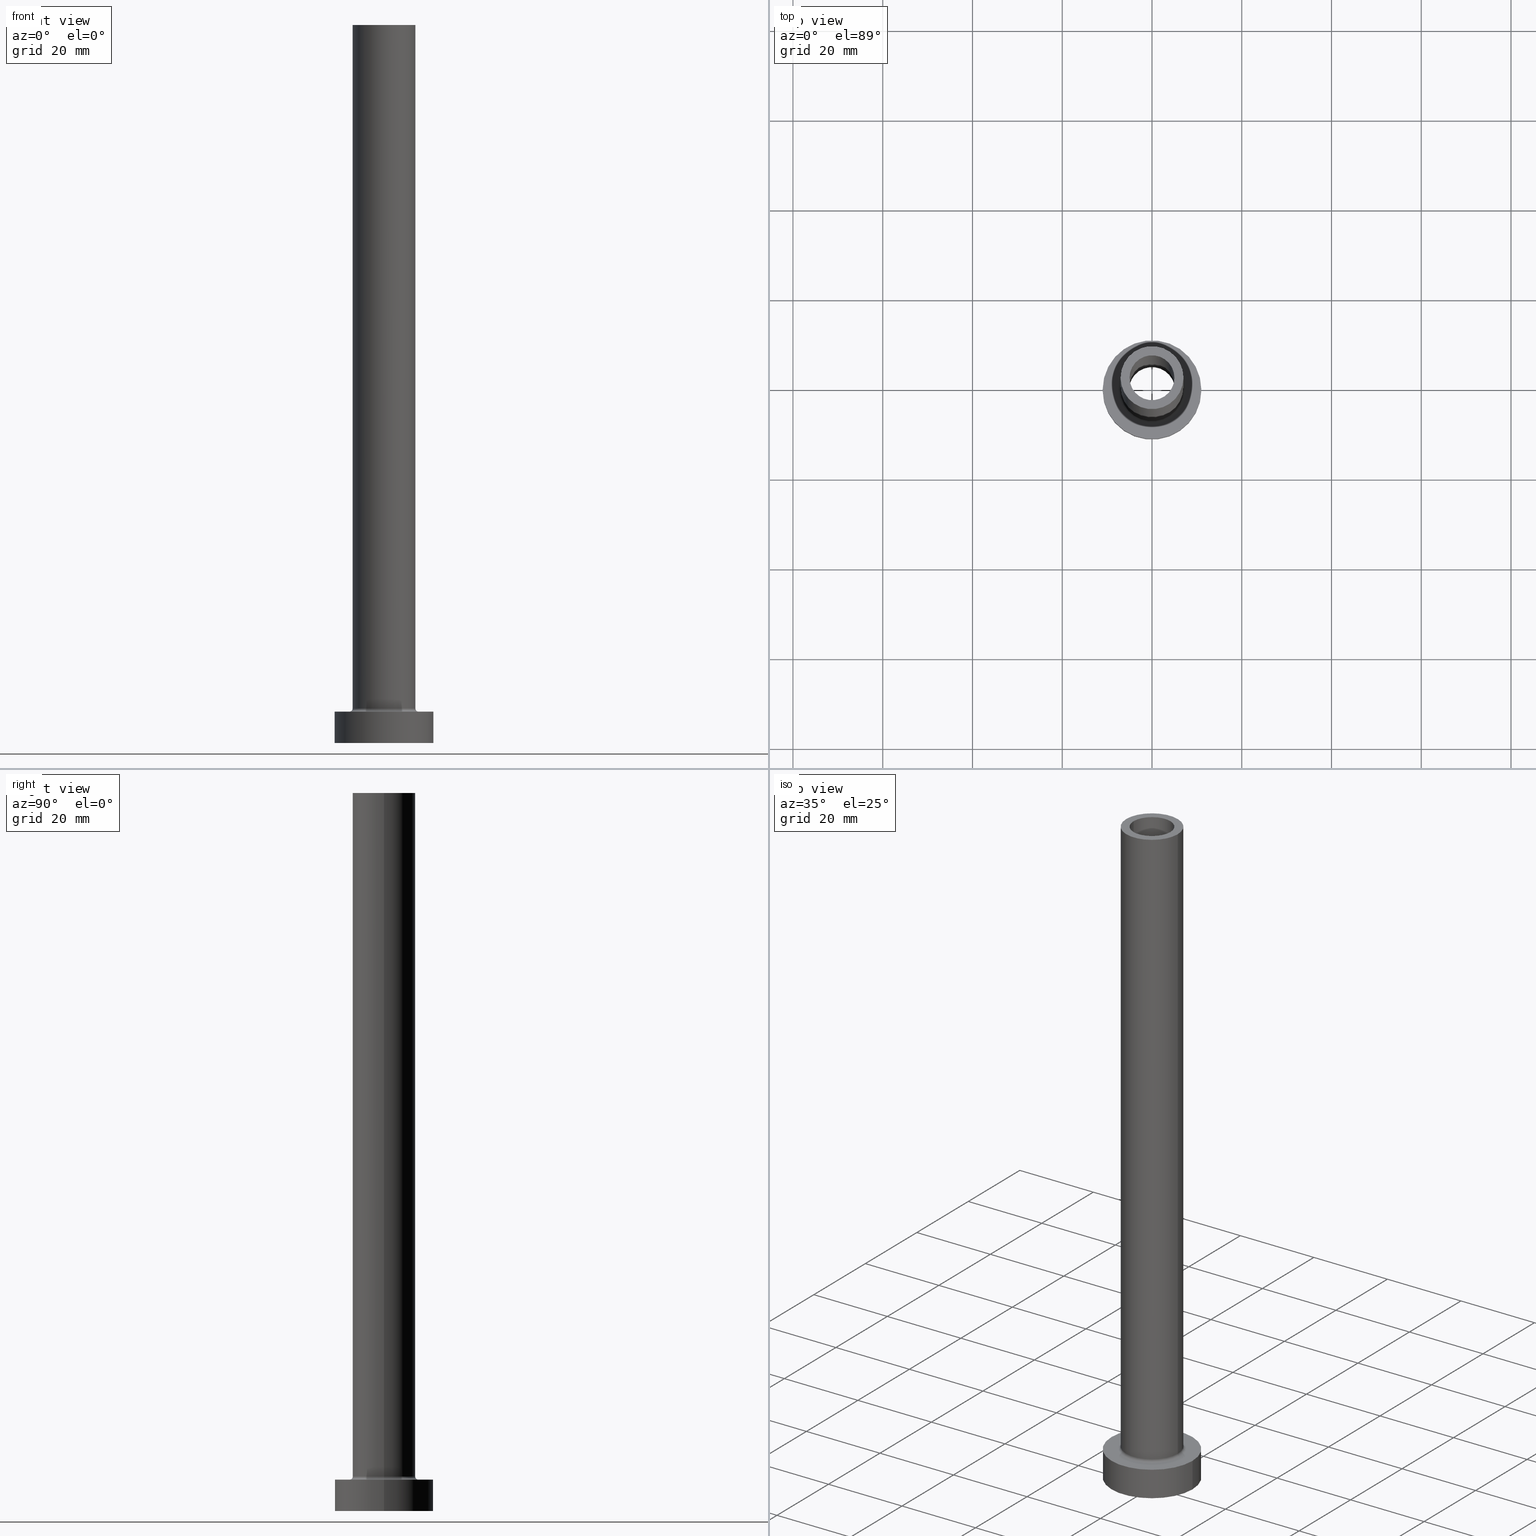
[diagram: canonical four-view strip — front | top / right | iso, engineering-drawing reading convention]
A machine part, canonical four-view strip (front | top / right | iso — engineering-drawing reading convention). The complete STEP part file that produces these views, byte-faithful:
ISO-10303-21;
HEADER;
FILE_DESCRIPTION (( 'STEP AP203' ),
    '1' );
FILE_NAME ('f8a9.STEP',
    '2023-02-13T07:44:09',
    ( '' ),
    ( '' ),
    'SwSTEP 2.0',
    'SolidWorks 2019',
    '' );
FILE_SCHEMA (( 'CONFIG_CONTROL_DESIGN' ));
ENDSEC;

DATA;
#1 = DIRECTION ( 'NONE',  ( 0.000000000000000000, 0.000000000000000000, 1.000000000000000000 ) ) ;
#2 = DIRECTION ( 'NONE',  ( 0.000000000000000000, 0.000000000000000000, -1.000000000000000000 ) ) ;
#3 = CARTESIAN_POINT ( 'NONE',  ( 0.000000000000000000, 0.000000000000000000, 115.0000000000000000 ) ) ;
#4 = EDGE_CURVE ( 'NONE', #73, #159, #318, .T. ) ;
#5 = PERSON_AND_ORGANIZATION_ROLE ( 'design_owner' ) ;
#6 = CARTESIAN_POINT ( 'NONE',  ( 0.000000000000000000, 0.000000000000000000, 160.0000000000000000 ) ) ;
#7 = FACE_OUTER_BOUND ( 'NONE', #450, .T. ) ;
#8 = ADVANCED_FACE ( 'NONE', ( #278 ), #282, .F. ) ;
#9 = FACE_OUTER_BOUND ( 'NONE', #59, .T. ) ;
#10 = COORDINATED_UNIVERSAL_TIME_OFFSET ( 1, 0, .AHEAD. ) ;
#11 = APPROVAL_PERSON_ORGANIZATION ( #179, #233, #110 ) ;
#12 = DATE_AND_TIME ( #43, #416 ) ;
#13 = DIRECTION ( 'NONE',  ( 0.000000000000000000, 0.000000000000000000, 1.000000000000000000 ) ) ;
#14 = APPROVAL_ROLE ( '' ) ;
#15 = CARTESIAN_POINT ( 'NONE',  ( 0.000000000000000000, 0.000000000000000000, 7.700000000000012612 ) ) ;
#16 = CARTESIAN_POINT ( 'NONE',  ( 0.000000000000000000, 0.000000000000000000, 160.0000000000000000 ) ) ;
#17 = CARTESIAN_POINT ( 'NONE',  ( -7.700000000000001066, 9.429780353434621002E-16, 7.000000000000006217 ) ) ;
#18 = ORIENTED_EDGE ( 'NONE', *, *, #431, .T. ) ;
#19 = CC_DESIGN_DATE_AND_TIME_ASSIGNMENT ( #271, #68, ( #268 ) ) ;
#20 = CARTESIAN_POINT ( 'NONE',  ( 7.700000000000001066, 0.000000000000000000, 7.700000000000012612 ) ) ;
#21 = CC_DESIGN_APPROVAL ( #102, ( #268 ) ) ;
#22 = DIRECTION ( 'NONE',  ( 1.000000000000000000, 0.000000000000000000, 0.000000000000000000 ) ) ;
#23 = EDGE_CURVE ( 'NONE', #168, #436, #105, .T. ) ;
#24 = AXIS2_PLACEMENT_3D ( 'NONE', #67, #212, #301 ) ;
#25 = AXIS2_PLACEMENT_3D ( 'NONE', #270, #225, #154 ) ;
#26 = ORIENTED_EDGE ( 'NONE', *, *, #446, .T. ) ;
#27 = LINE ( 'NONE', #294, #345 ) ;
#28 = ORIENTED_EDGE ( 'NONE', *, *, #328, .F. ) ;
#29 = EDGE_CURVE ( 'NONE', #436, #229, #381, .T. ) ;
#30 = ADVANCED_FACE ( 'NONE', ( #9 ), #111, .T. ) ;
#31 = LINE ( 'NONE', #399, #66 ) ;
#32 = CIRCLE ( 'NONE', #366, 7.700000000000001066 ) ;
#33 = CC_DESIGN_PERSON_AND_ORGANIZATION_ASSIGNMENT ( #261, #364, ( #217 ) ) ;
#34 = CARTESIAN_POINT ( 'NONE',  ( 0.000000000000000000, 0.000000000000000000, 160.0000000000000000 ) ) ;
#35 = VERTEX_POINT ( 'NONE', #329 ) ;
#36 = DATE_AND_TIME ( #149, #106 ) ;
#37 = CARTESIAN_POINT ( 'NONE',  ( 0.000000000000000000, 0.000000000000000000, 7.700000000000012612 ) ) ;
#38 = EDGE_LOOP ( 'NONE', ( #204, #334 ) ) ;
#39 = CC_DESIGN_PERSON_AND_ORGANIZATION_ASSIGNMENT ( #185, #338, ( #197 ) ) ;
#40 = CARTESIAN_POINT ( 'NONE',  ( 11.00000000000000000, 1.347111479062088405E-15, 7.000000000000000000 ) ) ;
#41 = EDGE_LOOP ( 'NONE', ( #393, #398 ) ) ;
#42 = APPROVAL_DATE_TIME ( #12, #151 ) ;
#43 = CALENDAR_DATE ( 2023, 13, 2 ) ;
#44 = EDGE_CURVE ( 'NONE', #386, #441, #440, .T. ) ;
#45 = ORIENTED_EDGE ( 'NONE', *, *, #255, .T. ) ;
#46 = EDGE_LOOP ( 'NONE', ( #410, #387, #454, #432 ) ) ;
#47 = DIRECTION ( 'NONE',  ( 0.000000000000000000, 0.000000000000000000, 1.000000000000000000 ) ) ;
#48 = EDGE_LOOP ( 'NONE', ( #289, #226 ) ) ;
#49 = DIRECTION ( 'NONE',  ( 0.000000000000000000, 0.000000000000000000, 1.000000000000000000 ) ) ;
#50 = DIRECTION ( 'NONE',  ( 0.000000000000000000, 0.000000000000000000, 1.000000000000000000 ) ) ;
#51 = CARTESIAN_POINT ( 'NONE',  ( -7.000000000000000888, 0.000000000000000000, 160.0000000000000000 ) ) ;
#52 = FACE_BOUND ( 'NONE', #132, .T. ) ;
#53 = TOROIDAL_SURFACE ( 'NONE', #196, 7.700000000000001066, 0.6999999999999999556 ) ;
#54 =( GEOMETRIC_REPRESENTATION_CONTEXT ( 3 ) GLOBAL_UNCERTAINTY_ASSIGNED_CONTEXT ( ( #250 ) ) GLOBAL_UNIT_ASSIGNED_CONTEXT ( ( #442, #227, #309 ) ) REPRESENTATION_CONTEXT ( 'NONE', 'WORKASPACE' ) );
#55 = ADVANCED_FACE ( 'NONE', ( #424 ), #280, .F. ) ;
#56 = CARTESIAN_POINT ( 'NONE',  ( 7.700000000000001066, 0.000000000000000000, 7.000000000000006217 ) ) ;
#57 = ORIENTED_EDGE ( 'NONE', *, *, #44, .T. ) ;
#58 = ORIENTED_EDGE ( 'NONE', *, *, #427, .T. ) ;
#59 = EDGE_LOOP ( 'NONE', ( #302, #448, #287, #26 ) ) ;
#60 = ORIENTED_EDGE ( 'NONE', *, *, #255, .F. ) ;
#61 = AXIS2_PLACEMENT_3D ( 'NONE', #244, #314, #451 ) ;
#62 = AXIS2_PLACEMENT_3D ( 'NONE', #230, #195, #81 ) ;
#63 = EDGE_LOOP ( 'NONE', ( #265, #324, #216, #113 ) ) ;
#64 = DESIGN_CONTEXT ( 'detailed design', #397, 'design' ) ;
#65 = CARTESIAN_POINT ( 'NONE',  ( 7.000000000000000888, 8.572527594031474176E-16, 160.0000000000000000 ) ) ;
#66 = VECTOR ( 'NONE', #175, 1000.000000000000000 ) ;
#67 = CARTESIAN_POINT ( 'NONE',  ( 0.000000000000000000, 0.000000000000000000, 7.000000000000000000 ) ) ;
#68 = DATE_TIME_ROLE ( 'creation_date' ) ;
#69 = CARTESIAN_POINT ( 'NONE',  ( 0.000000000000000000, 0.000000000000000000, 7.000000000000000000 ) ) ;
#70 = DIRECTION ( 'NONE',  ( 0.000000000000000000, 0.000000000000000000, -1.000000000000000000 ) ) ;
#71 = AXIS2_PLACEMENT_3D ( 'NONE', #373, #417, #418 ) ;
#72 = AXIS2_PLACEMENT_3D ( 'NONE', #16, #123, #351 ) ;
#73 = VERTEX_POINT ( 'NONE', #247 ) ;
#74 = DIRECTION ( 'NONE',  ( 1.000000000000000000, 0.000000000000000000, 0.000000000000000000 ) ) ;
#75 = DIRECTION ( 'NONE',  ( -1.000000000000000000, 1.224646799147351975E-16, 0.000000000000000000 ) ) ;
#76 = ORIENTED_EDGE ( 'NONE', *, *, #89, .F. ) ;
#77 = PERSON_AND_ORGANIZATION_ROLE ( 'creator' ) ;
#78 = CARTESIAN_POINT ( 'NONE',  ( -11.00000000000000000, 0.000000000000000000, 7.000000000000000000 ) ) ;
#79 = PRODUCT_DEFINITION_SHAPE ( 'NONE', 'NONE',  #268 ) ;
#80 = PERSON_AND_ORGANIZATION ( #191, #435 ) ;
#81 = DIRECTION ( 'NONE',  ( 1.000000000000000000, 0.000000000000000000, 0.000000000000000000 ) ) ;
#82 = DATE_TIME_ROLE ( 'classification_date' ) ;
#83 = ORIENTED_EDGE ( 'NONE', *, *, #120, .F. ) ;
#84 = AXIS2_PLACEMENT_3D ( 'NONE', #34, #136, #214 ) ;
#85 = AXIS2_PLACEMENT_3D ( 'NONE', #264, #408, #75 ) ;
#86 = DIRECTION ( 'NONE',  ( -0.000000000000000000, -0.000000000000000000, -1.000000000000000000 ) ) ;
#87 = CARTESIAN_POINT ( 'NONE',  ( 0.000000000000000000, 0.000000000000000000, 160.0000000000000000 ) ) ;
#88 = DIRECTION ( 'NONE',  ( 0.000000000000000000, 0.000000000000000000, 1.000000000000000000 ) ) ;
#89 = EDGE_CURVE ( 'NONE', #425, #104, #304, .T. ) ;
#90 = DIRECTION ( 'NONE',  ( 1.000000000000000000, 0.000000000000000000, -0.000000000000000000 ) ) ;
#91 = DIRECTION ( 'NONE',  ( -0.000000000000000000, -0.000000000000000000, -1.000000000000000000 ) ) ;
#92 = CARTESIAN_POINT ( 'NONE',  ( 0.000000000000000000, 0.000000000000000000, 115.0000000000000000 ) ) ;
#93 = CARTESIAN_POINT ( 'NONE',  ( 0.000000000000000000, 0.000000000000000000, 115.0000000000000000 ) ) ;
#94 = ORIENTED_EDGE ( 'NONE', *, *, #170, .F. ) ;
#95 = ORIENTED_EDGE ( 'NONE', *, *, #368, .T. ) ;
#96 = FACE_OUTER_BOUND ( 'NONE', #352, .T. ) ;
#97 = CARTESIAN_POINT ( 'NONE',  ( 0.000000000000000000, 0.000000000000000000, 7.700000000000012612 ) ) ;
#98 = DIRECTION ( 'NONE',  ( 1.000000000000000000, 0.000000000000000000, 0.000000000000000000 ) ) ;
#99 = CARTESIAN_POINT ( 'NONE',  ( 7.000000000000000888, 8.572527594031474176E-16, 7.700000000000012612 ) ) ;
#100 = CARTESIAN_POINT ( 'NONE',  ( 0.000000000000000000, 0.000000000000000000, 7.000000000000000000 ) ) ;
#101 = AXIS2_PLACEMENT_3D ( 'NONE', #187, #124, #126 ) ;
#102 = APPROVAL ( #375, 'NEUR�EN�' ) ;
#103 = AXIS2_PLACEMENT_3D ( 'NONE', #146, #50, #299 ) ;
#104 = VERTEX_POINT ( 'NONE', #56 ) ;
#105 = CIRCLE ( 'NONE', #157, 7.000000000000000888 ) ;
#106 = LOCAL_TIME ( 8, 44, 9.000000000000000000, #274 ) ;
#107 = CARTESIAN_POINT ( 'NONE',  ( -5.000000000000000000, 0.000000000000000000, 115.0000000000000000 ) ) ;
#108 = DIRECTION ( 'NONE',  ( 0.000000000000000000, 0.000000000000000000, 1.000000000000000000 ) ) ;
#109 = VERTEX_POINT ( 'NONE', #315 ) ;
#110 = APPROVAL_ROLE ( '' ) ;
#111 = CYLINDRICAL_SURFACE ( 'NONE', #24, 11.00000000000000000 ) ;
#112 = CARTESIAN_POINT ( 'NONE',  ( -5.150000000000001243, 0.000000000000000000, 115.0000000000000000 ) ) ;
#113 = ORIENTED_EDGE ( 'NONE', *, *, #342, .F. ) ;
#114 = ADVANCED_FACE ( 'NONE', ( #350 ), #128, .T. ) ;
#115 = PERSON_AND_ORGANIZATION ( #191, #435 ) ;
#116 = EDGE_CURVE ( 'NONE', #219, #305, #358, .T. ) ;
#117 = DIRECTION ( 'NONE',  ( 1.000000000000000000, 0.000000000000000000, 0.000000000000000000 ) ) ;
#118 = ADVANCED_FACE ( 'NONE', ( #96 ), #53, .F. ) ;
#119 = VERTEX_POINT ( 'NONE', #412 ) ;
#120 = EDGE_CURVE ( 'NONE', #305, #219, #395, .T. ) ;
#121 = PERSON_AND_ORGANIZATION ( #191, #435 ) ;
#122 = CARTESIAN_POINT ( 'NONE',  ( 0.000000000000000000, 0.000000000000000000, 0.000000000000000000 ) ) ;
#123 = DIRECTION ( 'NONE',  ( -0.000000000000000000, -0.000000000000000000, -1.000000000000000000 ) ) ;
#124 = DIRECTION ( 'NONE',  ( 0.000000000000000000, 0.000000000000000000, 1.000000000000000000 ) ) ;
#125 = AXIS2_PLACEMENT_3D ( 'NONE', #3, #434, #98 ) ;
#126 = DIRECTION ( 'NONE',  ( 1.000000000000000000, 0.000000000000000000, 0.000000000000000000 ) ) ;
#127 = ADVANCED_FACE ( 'NONE', ( #336, #7 ), #403, .T. ) ;
#128 = CYLINDRICAL_SURFACE ( 'NONE', #138, 11.00000000000000000 ) ;
#129 = ORIENTED_EDGE ( 'NONE', *, *, #328, .T. ) ;
#130 = CIRCLE ( 'NONE', #267, 11.00000000000000000 ) ;
#131 = AXIS2_PLACEMENT_3D ( 'NONE', #190, #141, #303 ) ;
#132 = EDGE_LOOP ( 'NONE', ( #354, #300 ) ) ;
#133 = PLANE ( 'NONE',  #359 ) ;
#134 = AXIS2_PLACEMENT_3D ( 'NONE', #388, #426, #246 ) ;
#135 = AXIS2_PLACEMENT_3D ( 'NONE', #242, #49, #74 ) ;
#136 = DIRECTION ( 'NONE',  ( -0.000000000000000000, -0.000000000000000000, -1.000000000000000000 ) ) ;
#137 = DIRECTION ( 'NONE',  ( 1.000000000000000000, 0.000000000000000000, -0.000000000000000000 ) ) ;
#138 = AXIS2_PLACEMENT_3D ( 'NONE', #421, #91, #236 ) ;
#139 = TOROIDAL_SURFACE ( 'NONE', #180, 7.700000000000001066, 0.6999999999999999556 ) ;
#140 = EDGE_LOOP ( 'NONE', ( #60, #437, #298, #83 ) ) ;
#141 = DIRECTION ( 'NONE',  ( 0.000000000000000000, 0.000000000000000000, 1.000000000000000000 ) ) ;
#142 = ORIENTED_EDGE ( 'NONE', *, *, #420, .F. ) ;
#143 = COORDINATED_UNIVERSAL_TIME_OFFSET ( 1, 0, .AHEAD. ) ;
#144 = PRODUCT ( 'f8a9', 'f8a9', '', ( #370 ) ) ;
#145 = LINE ( 'NONE', #422, #340 ) ;
#146 = CARTESIAN_POINT ( 'NONE',  ( 0.000000000000000000, 0.000000000000000000, 160.0000000000000000 ) ) ;
#147 = ORIENTED_EDGE ( 'NONE', *, *, #29, .F. ) ;
#148 = PERSON_AND_ORGANIZATION_ROLE ( 'design_supplier' ) ;
#149 = CALENDAR_DATE ( 2023, 13, 2 ) ;
#150 = CARTESIAN_POINT ( 'NONE',  ( 0.000000000000000000, 0.000000000000000000, 129.5663996924428716 ) ) ;
#151 = APPROVAL ( #152, 'NEUR�EN�' ) ;
#152 = APPROVAL_STATUS ( 'not_yet_approved' ) ;
#153 = DIRECTION ( 'NONE',  ( 1.000000000000000000, 0.000000000000000000, 0.000000000000000000 ) ) ;
#154 = DIRECTION ( 'NONE',  ( 1.000000000000000000, 0.000000000000000000, 0.000000000000000000 ) ) ;
#155 = DIRECTION ( 'NONE',  ( 1.000000000000000000, 0.000000000000000000, -0.000000000000000000 ) ) ;
#156 = DIRECTION ( 'NONE',  ( 0.000000000000000000, 0.000000000000000000, 1.000000000000000000 ) ) ;
#157 = AXIS2_PLACEMENT_3D ( 'NONE', #87, #88, #234 ) ;
#158 = AXIS2_PLACEMENT_3D ( 'NONE', #461, #326, #322 ) ;
#159 = VERTEX_POINT ( 'NONE', #385 ) ;
#160 = CARTESIAN_POINT ( 'NONE',  ( -7.000000000000000888, 0.000000000000000000, 160.0000000000000000 ) ) ;
#161 = VERTEX_POINT ( 'NONE', #279 ) ;
#162 = FACE_OUTER_BOUND ( 'NONE', #428, .T. ) ;
#163 = DIRECTION ( 'NONE',  ( 0.000000000000000000, 0.000000000000000000, 1.000000000000000000 ) ) ;
#164 = CARTESIAN_POINT ( 'NONE',  ( 0.000000000000000000, 0.000000000000000000, 129.5663996924428716 ) ) ;
#165 = DIRECTION ( 'NONE',  ( 1.000000000000000000, 0.000000000000000000, -0.000000000000000000 ) ) ;
#166 = FACE_OUTER_BOUND ( 'NONE', #41, .T. ) ;
#167 = APPROVAL_PERSON_ORGANIZATION ( #121, #102, #189 ) ;
#168 = VERTEX_POINT ( 'NONE', #231 ) ;
#169 = CC_DESIGN_PERSON_AND_ORGANIZATION_ASSIGNMENT ( #341, #77, ( #268 ) ) ;
#170 = EDGE_CURVE ( 'NONE', #386, #35, #27, .T. ) ;
#171 = LINE ( 'NONE', #389, #456 ) ;
#172 = PRODUCT_RELATED_PRODUCT_CATEGORY ( 'detail', '', ( #144 ) ) ;
#173 = CC_DESIGN_APPROVAL ( #151, ( #197 ) ) ;
#174 = CYLINDRICAL_SURFACE ( 'NONE', #84, 7.000000000000000888 ) ;
#175 = DIRECTION ( 'NONE',  ( 0.000000000000000000, 0.000000000000000000, -1.000000000000000000 ) ) ;
#176 = DIRECTION ( 'NONE',  ( 1.000000000000000000, 0.000000000000000000, 0.000000000000000000 ) ) ;
#177 = LINE ( 'NONE', #65, #339 ) ;
#178 = ORIENTED_EDGE ( 'NONE', *, *, #4, .F. ) ;
#179 = PERSON_AND_ORGANIZATION ( #191, #435 ) ;
#180 = AXIS2_PLACEMENT_3D ( 'NONE', #97, #245, #460 ) ;
#181 = ADVANCED_FACE ( 'NONE', ( #402 ), #174, .T. ) ;
#182 = PLANE ( 'NONE',  #276 ) ;
#183 = APPLICATION_PROTOCOL_DEFINITION ( 'international standard', 'config_control_design', 1994, #397 ) ;
#184 = CYLINDRICAL_SURFACE ( 'NONE', #455, 5.150000000000001243 ) ;
#185 = PERSON_AND_ORGANIZATION ( #191, #435 ) ;
#186 = DIRECTION ( 'NONE',  ( 0.000000000000000000, 0.000000000000000000, 1.000000000000000000 ) ) ;
#187 = CARTESIAN_POINT ( 'NONE',  ( 0.000000000000000000, 0.000000000000000000, 160.0000000000000000 ) ) ;
#188 = AXIS2_PLACEMENT_3D ( 'NONE', #266, #367, #445 ) ;
#189 = APPROVAL_ROLE ( '' ) ;
#190 = CARTESIAN_POINT ( 'NONE',  ( 0.000000000000000000, 0.000000000000000000, 0.000000000000000000 ) ) ;
#191 = PERSON ( 'NEUR�EN�', 'NEUR�EN�', 'NEUR�EN�', ('NEUR�EN�'), ('NEUR�EN�'), ('NEUR�EN�') ) ;
#192 = DIRECTION ( 'NONE',  ( 0.000000000000000000, 0.000000000000000000, -1.000000000000000000 ) ) ;
#193 = EDGE_LOOP ( 'NONE', ( #308, #383 ) ) ;
#194 = SHAPE_DEFINITION_REPRESENTATION ( #79, #206 ) ;
#195 = DIRECTION ( 'NONE',  ( 0.000000000000000000, 0.000000000000000000, 1.000000000000000000 ) ) ;
#196 = AXIS2_PLACEMENT_3D ( 'NONE', #15, #47, #153 ) ;
#197 = PRODUCT_DEFINITION_FORMATION_WITH_SPECIFIED_SOURCE ( 'LIBOVOLN�', '', #144, .NOT_KNOWN. ) ;
#198 = DIRECTION ( 'NONE',  ( -1.000000000000000000, 0.000000000000000000, 0.000000000000000000 ) ) ;
#199 = DIRECTION ( 'NONE',  ( 0.000000000000000000, 0.000000000000000000, -1.000000000000000000 ) ) ;
#200 = ORIENTED_EDGE ( 'NONE', *, *, #23, .F. ) ;
#201 = FACE_OUTER_BOUND ( 'NONE', #218, .T. ) ;
#202 = DIRECTION ( 'NONE',  ( -0.000000000000000000, -0.000000000000000000, -1.000000000000000000 ) ) ;
#203 = ORIENTED_EDGE ( 'NONE', *, *, #427, .F. ) ;
#204 = ORIENTED_EDGE ( 'NONE', *, *, #44, .F. ) ;
#205 = ADVANCED_FACE ( 'NONE', ( #405, #363 ), #182, .T. ) ;
#206 = ADVANCED_BREP_SHAPE_REPRESENTATION ( 'f8a9', ( #281, #188 ), #54 ) ;
#207 = EDGE_CURVE ( 'NONE', #159, #219, #31, .T. ) ;
#208 = AXIS2_PLACEMENT_3D ( 'NONE', #288, #163, #90 ) ;
#209 = CIRCLE ( 'NONE', #135, 11.00000000000000000 ) ;
#210 = EDGE_CURVE ( 'NONE', #168, #425, #177, .T. ) ;
#211 = CIRCLE ( 'NONE', #62, 5.150000000000001243 ) ;
#212 = DIRECTION ( 'NONE',  ( -0.000000000000000000, -0.000000000000000000, -1.000000000000000000 ) ) ;
#213 = CARTESIAN_POINT ( 'NONE',  ( 0.000000000000000000, 0.000000000000000000, 7.000000000000000000 ) ) ;
#214 = DIRECTION ( 'NONE',  ( -1.000000000000000000, 0.000000000000000000, 0.000000000000000000 ) ) ;
#215 = EDGE_CURVE ( 'NONE', #241, #109, #130, .T. ) ;
#216 = ORIENTED_EDGE ( 'NONE', *, *, #355, .T. ) ;
#217 = SECURITY_CLASSIFICATION ( '', '', #372 ) ;
#218 = EDGE_LOOP ( 'NONE', ( #200, #413, #392, #147 ) ) ;
#219 = VERTEX_POINT ( 'NONE', #107 ) ;
#220 = COORDINATED_UNIVERSAL_TIME_OFFSET ( 1, 0, .AHEAD. ) ;
#221 = DIRECTION ( 'NONE',  ( 0.000000000000000000, 0.000000000000000000, -1.000000000000000000 ) ) ;
#222 = VERTEX_POINT ( 'NONE', #380 ) ;
#223 = CALENDAR_DATE ( 2023, 13, 2 ) ;
#224 = FACE_OUTER_BOUND ( 'NONE', #257, .T. ) ;
#225 = DIRECTION ( 'NONE',  ( 0.000000000000000000, 0.000000000000000000, 1.000000000000000000 ) ) ;
#226 = ORIENTED_EDGE ( 'NONE', *, *, #120, .T. ) ;
#227 =( NAMED_UNIT ( * ) PLANE_ANGLE_UNIT ( ) SI_UNIT ( $, .RADIAN. ) );
#228 = CARTESIAN_POINT ( 'NONE',  ( -7.000000000000000888, 0.000000000000000000, 7.700000000000012612 ) ) ;
#229 = VERTEX_POINT ( 'NONE', #228 ) ;
#230 = CARTESIAN_POINT ( 'NONE',  ( 0.000000000000000000, 0.000000000000000000, 115.0000000000000000 ) ) ;
#231 = CARTESIAN_POINT ( 'NONE',  ( 7.000000000000000888, 8.572527594031474176E-16, 160.0000000000000000 ) ) ;
#232 = DIRECTION ( 'NONE',  ( 0.000000000000000000, 0.000000000000000000, -1.000000000000000000 ) ) ;
#233 = APPROVAL ( #438, 'NEUR�EN�' ) ;
#234 = DIRECTION ( 'NONE',  ( 1.000000000000000000, 0.000000000000000000, 0.000000000000000000 ) ) ;
#235 = CARTESIAN_POINT ( 'NONE',  ( 0.000000000000000000, 0.000000000000000000, 160.0000000000000000 ) ) ;
#236 = DIRECTION ( 'NONE',  ( -1.000000000000000000, 0.000000000000000000, 0.000000000000000000 ) ) ;
#237 = ORIENTED_EDGE ( 'NONE', *, *, #283, .F. ) ;
#238 = VECTOR ( 'NONE', #86, 1000.000000000000000 ) ;
#239 = ORIENTED_EDGE ( 'NONE', *, *, #89, .T. ) ;
#240 = DIRECTION ( 'NONE',  ( 0.000000000000000000, -1.000000000000000000, 0.000000000000000000 ) ) ;
#241 = VERTEX_POINT ( 'NONE', #78 ) ;
#242 = CARTESIAN_POINT ( 'NONE',  ( 0.000000000000000000, 0.000000000000000000, 0.000000000000000000 ) ) ;
#243 = ADVANCED_FACE ( 'NONE', ( #224 ), #184, .F. ) ;
#244 = CARTESIAN_POINT ( 'NONE',  ( 0.000000000000000000, 0.000000000000000000, 7.700000000000012612 ) ) ;
#245 = DIRECTION ( 'NONE',  ( 0.000000000000000000, 0.000000000000000000, 1.000000000000000000 ) ) ;
#246 = DIRECTION ( 'NONE',  ( 1.000000000000000000, 0.000000000000000000, 0.000000000000000000 ) ) ;
#247 = CARTESIAN_POINT ( 'NONE',  ( 5.000000000000000000, 6.123233995736765296E-16, 160.0000000000000000 ) ) ;
#248 = DIRECTION ( 'NONE',  ( 1.000000000000000000, 0.000000000000000000, 0.000000000000000000 ) ) ;
#249 = FACE_OUTER_BOUND ( 'NONE', #38, .T. ) ;
#250 = UNCERTAINTY_MEASURE_WITH_UNIT (LENGTH_MEASURE( 1.000000000000000082E-05 ), #442, 'distance_accuracy_value', 'NONE');
#251 = ORIENTED_EDGE ( 'NONE', *, *, #391, .T. ) ;
#252 = CC_DESIGN_DATE_AND_TIME_ASSIGNMENT ( #36, #82, ( #217 ) ) ;
#253 = VECTOR ( 'NONE', #221, 1000.000000000000000 ) ;
#254 = CIRCLE ( 'NONE', #131, 11.00000000000000000 ) ;
#255 = EDGE_CURVE ( 'NONE', #73, #305, #377, .T. ) ;
#256 = CIRCLE ( 'NONE', #25, 11.00000000000000000 ) ;
#257 = EDGE_LOOP ( 'NONE', ( #57, #18, #321, #94 ) ) ;
#258 = EDGE_CURVE ( 'NONE', #35, #161, #429, .T. ) ;
#259 = DIRECTION ( 'NONE',  ( 1.000000000000000000, 0.000000000000000000, 0.000000000000000000 ) ) ;
#260 = EDGE_LOOP ( 'NONE', ( #58, #371 ) ) ;
#261 = PERSON_AND_ORGANIZATION ( #191, #435 ) ;
#262 = CARTESIAN_POINT ( 'NONE',  ( 0.000000000000000000, 0.000000000000000000, 115.0000000000000000 ) ) ;
#263 = ADVANCED_FACE ( 'NONE', ( #275 ), #272, .F. ) ;
#264 = CARTESIAN_POINT ( 'NONE',  ( -7.700000000000001066, 9.429780353434621002E-16, 7.700000000000012612 ) ) ;
#265 = ORIENTED_EDGE ( 'NONE', *, *, #368, .F. ) ;
#266 = CARTESIAN_POINT ( 'NONE',  ( 0.000000000000000000, 0.000000000000000000, 0.000000000000000000 ) ) ;
#267 = AXIS2_PLACEMENT_3D ( 'NONE', #213, #361, #176 ) ;
#268 = PRODUCT_DEFINITION ( 'NEZN�M�', '', #197, #64 ) ;
#269 = APPROVAL_DATE_TIME ( #443, #102 ) ;
#270 = CARTESIAN_POINT ( 'NONE',  ( 0.000000000000000000, 0.000000000000000000, 7.000000000000000000 ) ) ;
#271 = DATE_AND_TIME ( #223, #346 ) ;
#272 = CYLINDRICAL_SURFACE ( 'NONE', #356, 5.000000000000000000 ) ;
#273 = APPLICATION_CONTEXT ( 'configuration controlled 3d designs of mechanical parts and assemblies' ) ;
#274 = COORDINATED_UNIVERSAL_TIME_OFFSET ( 1, 0, .AHEAD. ) ;
#275 = FACE_OUTER_BOUND ( 'NONE', #140, .T. ) ;
#276 = AXIS2_PLACEMENT_3D ( 'NONE', #6, #1, #137 ) ;
#277 = DIRECTION ( 'NONE',  ( 1.000000000000000000, 0.000000000000000000, 0.000000000000000000 ) ) ;
#278 = FACE_OUTER_BOUND ( 'NONE', #430, .T. ) ;
#279 = CARTESIAN_POINT ( 'NONE',  ( 5.150000000000001243, 6.306931015608869596E-16, 0.000000000000000000 ) ) ;
#280 = CYLINDRICAL_SURFACE ( 'NONE', #296, 5.150000000000001243 ) ;
#281 = MANIFOLD_SOLID_BREP ( 'Odebrat vysunut�m4', #311 ) ;
#282 = CYLINDRICAL_SURFACE ( 'NONE', #71, 5.000000000000000000 ) ;
#283 = EDGE_CURVE ( 'NONE', #425, #229, #433, .T. ) ;
#284 = DATE_AND_TIME ( #449, #319 ) ;
#285 = ADVANCED_FACE ( 'NONE', ( #52, #166 ), #419, .F. ) ;
#286 = CIRCLE ( 'NONE', #411, 7.000000000000000888 ) ;
#287 = ORIENTED_EDGE ( 'NONE', *, *, #342, .T. ) ;
#288 = CARTESIAN_POINT ( 'NONE',  ( 0.000000000000000000, 0.000000000000000000, 0.000000000000000000 ) ) ;
#289 = ORIENTED_EDGE ( 'NONE', *, *, #116, .T. ) ;
#290 = CARTESIAN_POINT ( 'NONE',  ( 5.150000000000001243, 6.306931015608869596E-16, 115.0000000000000000 ) ) ;
#291 = ORIENTED_EDGE ( 'NONE', *, *, #170, .T. ) ;
#292 = CIRCLE ( 'NONE', #134, 5.150000000000001243 ) ;
#293 = CC_DESIGN_APPROVAL ( #233, ( #217 ) ) ;
#294 = CARTESIAN_POINT ( 'NONE',  ( -5.150000000000001243, 0.000000000000000000, 129.5663996924428716 ) ) ;
#295 = CC_DESIGN_PERSON_AND_ORGANIZATION_ASSIGNMENT ( #115, #5, ( #144 ) ) ;
#296 = AXIS2_PLACEMENT_3D ( 'NONE', #164, #199, #344 ) ;
#297 = CIRCLE ( 'NONE', #85, 0.7000000000000000666 ) ;
#298 = ORIENTED_EDGE ( 'NONE', *, *, #207, .T. ) ;
#299 = DIRECTION ( 'NONE',  ( 1.000000000000000000, 0.000000000000000000, 0.000000000000000000 ) ) ;
#300 = ORIENTED_EDGE ( 'NONE', *, *, #323, .F. ) ;
#301 = DIRECTION ( 'NONE',  ( -1.000000000000000000, 0.000000000000000000, 0.000000000000000000 ) ) ;
#302 = ORIENTED_EDGE ( 'NONE', *, *, #348, .F. ) ;
#303 = DIRECTION ( 'NONE',  ( 1.000000000000000000, 0.000000000000000000, 0.000000000000000000 ) ) ;
#304 = CIRCLE ( 'NONE', #400, 0.7000000000000000666 ) ;
#305 = VERTEX_POINT ( 'NONE', #423 ) ;
#306 = CARTESIAN_POINT ( 'NONE',  ( 5.000000000000000000, 6.123233995736765296E-16, 160.0000000000000000 ) ) ;
#307 = CYLINDRICAL_SURFACE ( 'NONE', #72, 7.000000000000000888 ) ;
#308 = ORIENTED_EDGE ( 'NONE', *, *, #378, .T. ) ;
#309 =( NAMED_UNIT ( * ) SI_UNIT ( $, .STERADIAN. ) SOLID_ANGLE_UNIT ( ) );
#310 = EDGE_LOOP ( 'NONE', ( #317, #379, #291, #459 ) ) ;
#311 = CLOSED_SHELL ( 'NONE', ( #8, #243, #404, #396, #114, #30, #127, #285, #181, #205, #118, #55, #394, #263 ) ) ;
#312 = LOCAL_TIME ( 8, 44, 9.000000000000000000, #143 ) ;
#313 = ORIENTED_EDGE ( 'NONE', *, *, #215, .T. ) ;
#314 = DIRECTION ( 'NONE',  ( 0.000000000000000000, 0.000000000000000000, 1.000000000000000000 ) ) ;
#315 = CARTESIAN_POINT ( 'NONE',  ( 11.00000000000000000, 1.347111479062088405E-15, 7.000000000000000000 ) ) ;
#316 = EDGE_LOOP ( 'NONE', ( #28, #178 ) ) ;
#317 = ORIENTED_EDGE ( 'NONE', *, *, #431, .F. ) ;
#318 = CIRCLE ( 'NONE', #101, 5.000000000000000000 ) ;
#319 = LOCAL_TIME ( 8, 44, 9.000000000000000000, #406 ) ;
#320 = DIRECTION ( 'NONE',  ( -0.000000000000000000, -0.000000000000000000, -1.000000000000000000 ) ) ;
#321 = ORIENTED_EDGE ( 'NONE', *, *, #323, .T. ) ;
#322 = DIRECTION ( 'NONE',  ( 1.000000000000000000, 0.000000000000000000, 0.000000000000000000 ) ) ;
#323 = EDGE_CURVE ( 'NONE', #161, #35, #292, .T. ) ;
#324 = ORIENTED_EDGE ( 'NONE', *, *, #348, .T. ) ;
#325 = APPROVAL_PERSON_ORGANIZATION ( #80, #151, #14 ) ;
#326 = DIRECTION ( 'NONE',  ( -0.000000000000000000, -0.000000000000000000, -1.000000000000000000 ) ) ;
#327 = DIRECTION ( 'NONE',  ( -0.000000000000000000, -0.000000000000000000, -1.000000000000000000 ) ) ;
#328 = EDGE_CURVE ( 'NONE', #159, #73, #409, .T. ) ;
#329 = CARTESIAN_POINT ( 'NONE',  ( -5.150000000000001243, 0.000000000000000000, 0.000000000000000000 ) ) ;
#330 = AXIS2_PLACEMENT_3D ( 'NONE', #69, #186, #165 ) ;
#331 = ORIENTED_EDGE ( 'NONE', *, *, #116, .F. ) ;
#332 = CIRCLE ( 'NONE', #103, 7.000000000000000888 ) ;
#333 = APPLICATION_PROTOCOL_DEFINITION ( 'international standard', 'config_control_design', 1994, #273 ) ;
#334 = ORIENTED_EDGE ( 'NONE', *, *, #362, .F. ) ;
#335 = CALENDAR_DATE ( 2023, 13, 2 ) ;
#336 = FACE_BOUND ( 'NONE', #260, .T. ) ;
#337 = CC_DESIGN_PERSON_AND_ORGANIZATION_ASSIGNMENT ( #414, #148, ( #197 ) ) ;
#338 = PERSON_AND_ORGANIZATION_ROLE ( 'creator' ) ;
#339 = VECTOR ( 'NONE', #327, 1000.000000000000000 ) ;
#340 = VECTOR ( 'NONE', #202, 1000.000000000000000 ) ;
#341 = PERSON_AND_ORGANIZATION ( #191, #435 ) ;
#342 = EDGE_CURVE ( 'NONE', #241, #222, #145, .T. ) ;
#343 = ORIENTED_EDGE ( 'NONE', *, *, #207, .F. ) ;
#344 = DIRECTION ( 'NONE',  ( -1.000000000000000000, 0.000000000000000000, 0.000000000000000000 ) ) ;
#345 = VECTOR ( 'NONE', #2, 1000.000000000000000 ) ;
#346 = LOCAL_TIME ( 8, 44, 9.000000000000000000, #220 ) ;
#347 = DIRECTION ( 'NONE',  ( -0.000000000000000000, -0.000000000000000000, -1.000000000000000000 ) ) ;
#348 = EDGE_CURVE ( 'NONE', #109, #119, #439, .T. ) ;
#349 = DIRECTION ( 'NONE',  ( 0.000000000000000000, 0.000000000000000000, 1.000000000000000000 ) ) ;
#350 = FACE_OUTER_BOUND ( 'NONE', #63, .T. ) ;
#351 = DIRECTION ( 'NONE',  ( -1.000000000000000000, 0.000000000000000000, 0.000000000000000000 ) ) ;
#352 = EDGE_LOOP ( 'NONE', ( #390, #237, #239, #142 ) ) ;
#353 = DIRECTION ( 'NONE',  ( 0.000000000000000000, 0.000000000000000000, 1.000000000000000000 ) ) ;
#354 = ORIENTED_EDGE ( 'NONE', *, *, #258, .F. ) ;
#355 = EDGE_CURVE ( 'NONE', #119, #222, #209, .T. ) ;
#356 = AXIS2_PLACEMENT_3D ( 'NONE', #407, #70, #198 ) ;
#357 = CC_DESIGN_SECURITY_CLASSIFICATION ( #217, ( #197 ) ) ;
#358 = CIRCLE ( 'NONE', #382, 5.000000000000000000 ) ;
#359 = AXIS2_PLACEMENT_3D ( 'NONE', #92, #13, #155 ) ;
#360 = EDGE_CURVE ( 'NONE', #229, #425, #286, .T. ) ;
#361 = DIRECTION ( 'NONE',  ( 0.000000000000000000, 0.000000000000000000, 1.000000000000000000 ) ) ;
#362 = EDGE_CURVE ( 'NONE', #441, #386, #211, .T. ) ;
#363 = FACE_OUTER_BOUND ( 'NONE', #193, .T. ) ;
#364 = PERSON_AND_ORGANIZATION_ROLE ( 'classification_officer' ) ;
#365 = VERTEX_POINT ( 'NONE', #17 ) ;
#366 = AXIS2_PLACEMENT_3D ( 'NONE', #100, #320, #248 ) ;
#367 = DIRECTION ( 'NONE',  ( 0.000000000000000000, 0.000000000000000000, 1.000000000000000000 ) ) ;
#368 = EDGE_CURVE ( 'NONE', #109, #241, #256, .T. ) ;
#369 = FACE_BOUND ( 'NONE', #48, .T. ) ;
#370 = MECHANICAL_CONTEXT ( 'NONE', #273, 'mechanical' ) ;
#371 = ORIENTED_EDGE ( 'NONE', *, *, #420, .T. ) ;
#372 = SECURITY_CLASSIFICATION_LEVEL ( 'unclassified' ) ;
#373 = CARTESIAN_POINT ( 'NONE',  ( 0.000000000000000000, 0.000000000000000000, 160.0000000000000000 ) ) ;
#374 = AXIS2_PLACEMENT_3D ( 'NONE', #122, #444, #117 ) ;
#375 = APPROVAL_STATUS ( 'not_yet_approved' ) ;
#376 = CIRCLE ( 'NONE', #158, 7.700000000000001066 ) ;
#377 = LINE ( 'NONE', #306, #253 ) ;
#378 = EDGE_CURVE ( 'NONE', #436, #168, #332, .T. ) ;
#379 = ORIENTED_EDGE ( 'NONE', *, *, #362, .T. ) ;
#380 = CARTESIAN_POINT ( 'NONE',  ( -11.00000000000000000, 0.000000000000000000, 0.000000000000000000 ) ) ;
#381 = LINE ( 'NONE', #51, #401 ) ;
#382 = AXIS2_PLACEMENT_3D ( 'NONE', #93, #353, #384 ) ;
#383 = ORIENTED_EDGE ( 'NONE', *, *, #23, .T. ) ;
#384 = DIRECTION ( 'NONE',  ( 1.000000000000000000, 0.000000000000000000, 0.000000000000000000 ) ) ;
#385 = CARTESIAN_POINT ( 'NONE',  ( -5.000000000000000000, 0.000000000000000000, 160.0000000000000000 ) ) ;
#386 = VERTEX_POINT ( 'NONE', #112 ) ;
#387 = ORIENTED_EDGE ( 'NONE', *, *, #378, .F. ) ;
#388 = CARTESIAN_POINT ( 'NONE',  ( 0.000000000000000000, 0.000000000000000000, 0.000000000000000000 ) ) ;
#389 = CARTESIAN_POINT ( 'NONE',  ( 5.150000000000001243, 6.306931015608869596E-16, 129.5663996924428716 ) ) ;
#390 = ORIENTED_EDGE ( 'NONE', *, *, #391, .F. ) ;
#391 = EDGE_CURVE ( 'NONE', #229, #365, #297, .T. ) ;
#392 = ORIENTED_EDGE ( 'NONE', *, *, #283, .T. ) ;
#393 = ORIENTED_EDGE ( 'NONE', *, *, #446, .F. ) ;
#394 = ADVANCED_FACE ( 'NONE', ( #369, #249 ), #133, .F. ) ;
#395 = CIRCLE ( 'NONE', #415, 5.000000000000000000 ) ;
#396 = ADVANCED_FACE ( 'NONE', ( #201 ), #307, .T. ) ;
#397 = APPLICATION_CONTEXT ( 'configuration controlled 3d designs of mechanical parts and assemblies' ) ;
#398 = ORIENTED_EDGE ( 'NONE', *, *, #355, .F. ) ;
#399 = CARTESIAN_POINT ( 'NONE',  ( -5.000000000000000000, 0.000000000000000000, 160.0000000000000000 ) ) ;
#400 = AXIS2_PLACEMENT_3D ( 'NONE', #20, #240, #452 ) ;
#401 = VECTOR ( 'NONE', #347, 1000.000000000000000 ) ;
#402 = FACE_OUTER_BOUND ( 'NONE', #46, .T. ) ;
#403 = PLANE ( 'NONE',  #330 ) ;
#404 = ADVANCED_FACE ( 'NONE', ( #162 ), #139, .F. ) ;
#405 = FACE_BOUND ( 'NONE', #316, .T. ) ;
#406 = COORDINATED_UNIVERSAL_TIME_OFFSET ( 1, 0, .AHEAD. ) ;
#407 = CARTESIAN_POINT ( 'NONE',  ( 0.000000000000000000, 0.000000000000000000, 160.0000000000000000 ) ) ;
#408 = DIRECTION ( 'NONE',  ( 1.224646799147353207E-16, 1.000000000000000000, -0.000000000000000000 ) ) ;
#409 = CIRCLE ( 'NONE', #458, 5.000000000000000000 ) ;
#410 = ORIENTED_EDGE ( 'NONE', *, *, #210, .F. ) ;
#411 = AXIS2_PLACEMENT_3D ( 'NONE', #37, #156, #277 ) ;
#412 = CARTESIAN_POINT ( 'NONE',  ( 11.00000000000000000, 1.347111479062088405E-15, 0.000000000000000000 ) ) ;
#413 = ORIENTED_EDGE ( 'NONE', *, *, #210, .T. ) ;
#414 = PERSON_AND_ORGANIZATION ( #191, #435 ) ;
#415 = AXIS2_PLACEMENT_3D ( 'NONE', #262, #108, #259 ) ;
#416 = LOCAL_TIME ( 8, 44, 9.000000000000000000, #10 ) ;
#417 = DIRECTION ( 'NONE',  ( 0.000000000000000000, 0.000000000000000000, -1.000000000000000000 ) ) ;
#418 = DIRECTION ( 'NONE',  ( -1.000000000000000000, 0.000000000000000000, 0.000000000000000000 ) ) ;
#419 = PLANE ( 'NONE',  #208 ) ;
#420 = EDGE_CURVE ( 'NONE', #365, #104, #32, .T. ) ;
#421 = CARTESIAN_POINT ( 'NONE',  ( 0.000000000000000000, 0.000000000000000000, 7.000000000000000000 ) ) ;
#422 = CARTESIAN_POINT ( 'NONE',  ( -11.00000000000000000, 0.000000000000000000, 7.000000000000000000 ) ) ;
#423 = CARTESIAN_POINT ( 'NONE',  ( 5.000000000000000000, 6.123233995736765296E-16, 115.0000000000000000 ) ) ;
#424 = FACE_OUTER_BOUND ( 'NONE', #310, .T. ) ;
#425 = VERTEX_POINT ( 'NONE', #99 ) ;
#426 = DIRECTION ( 'NONE',  ( -0.000000000000000000, -0.000000000000000000, -1.000000000000000000 ) ) ;
#427 = EDGE_CURVE ( 'NONE', #104, #365, #376, .T. ) ;
#428 = EDGE_LOOP ( 'NONE', ( #457, #251, #203, #76 ) ) ;
#429 = CIRCLE ( 'NONE', #374, 5.150000000000001243 ) ;
#430 = EDGE_LOOP ( 'NONE', ( #129, #45, #331, #343 ) ) ;
#431 = EDGE_CURVE ( 'NONE', #441, #161, #171, .T. ) ;
#432 = ORIENTED_EDGE ( 'NONE', *, *, #360, .T. ) ;
#433 = CIRCLE ( 'NONE', #61, 7.000000000000000888 ) ;
#434 = DIRECTION ( 'NONE',  ( 0.000000000000000000, 0.000000000000000000, 1.000000000000000000 ) ) ;
#435 = ORGANIZATION ( 'NEUR�EN�', 'NEUR�EN�', '' ) ;
#436 = VERTEX_POINT ( 'NONE', #160 ) ;
#437 = ORIENTED_EDGE ( 'NONE', *, *, #4, .T. ) ;
#438 = APPROVAL_STATUS ( 'not_yet_approved' ) ;
#439 = LINE ( 'NONE', #40, #238 ) ;
#440 = CIRCLE ( 'NONE', #125, 5.150000000000001243 ) ;
#441 = VERTEX_POINT ( 'NONE', #290 ) ;
#442 =( LENGTH_UNIT ( ) NAMED_UNIT ( * ) SI_UNIT ( .MILLI., .METRE. ) );
#443 = DATE_AND_TIME ( #335, #312 ) ;
#444 = DIRECTION ( 'NONE',  ( -0.000000000000000000, -0.000000000000000000, -1.000000000000000000 ) ) ;
#445 = DIRECTION ( 'NONE',  ( 1.000000000000000000, 0.000000000000000000, 0.000000000000000000 ) ) ;
#446 = EDGE_CURVE ( 'NONE', #222, #119, #254, .T. ) ;
#447 = DIRECTION ( 'NONE',  ( -1.000000000000000000, 0.000000000000000000, 0.000000000000000000 ) ) ;
#448 = ORIENTED_EDGE ( 'NONE', *, *, #215, .F. ) ;
#449 = CALENDAR_DATE ( 2023, 13, 2 ) ;
#450 = EDGE_LOOP ( 'NONE', ( #313, #95 ) ) ;
#451 = DIRECTION ( 'NONE',  ( 1.000000000000000000, 0.000000000000000000, 0.000000000000000000 ) ) ;
#452 = DIRECTION ( 'NONE',  ( 0.000000000000000000, 0.000000000000000000, -1.000000000000000000 ) ) ;
#453 = APPROVAL_DATE_TIME ( #284, #233 ) ;
#454 = ORIENTED_EDGE ( 'NONE', *, *, #29, .T. ) ;
#455 = AXIS2_PLACEMENT_3D ( 'NONE', #150, #192, #447 ) ;
#456 = VECTOR ( 'NONE', #232, 1000.000000000000000 ) ;
#457 = ORIENTED_EDGE ( 'NONE', *, *, #360, .F. ) ;
#458 = AXIS2_PLACEMENT_3D ( 'NONE', #235, #349, #22 ) ;
#459 = ORIENTED_EDGE ( 'NONE', *, *, #258, .T. ) ;
#460 = DIRECTION ( 'NONE',  ( 1.000000000000000000, 0.000000000000000000, 0.000000000000000000 ) ) ;
#461 = CARTESIAN_POINT ( 'NONE',  ( 0.000000000000000000, 0.000000000000000000, 7.000000000000000000 ) ) ;
ENDSEC;
END-ISO-10303-21;
